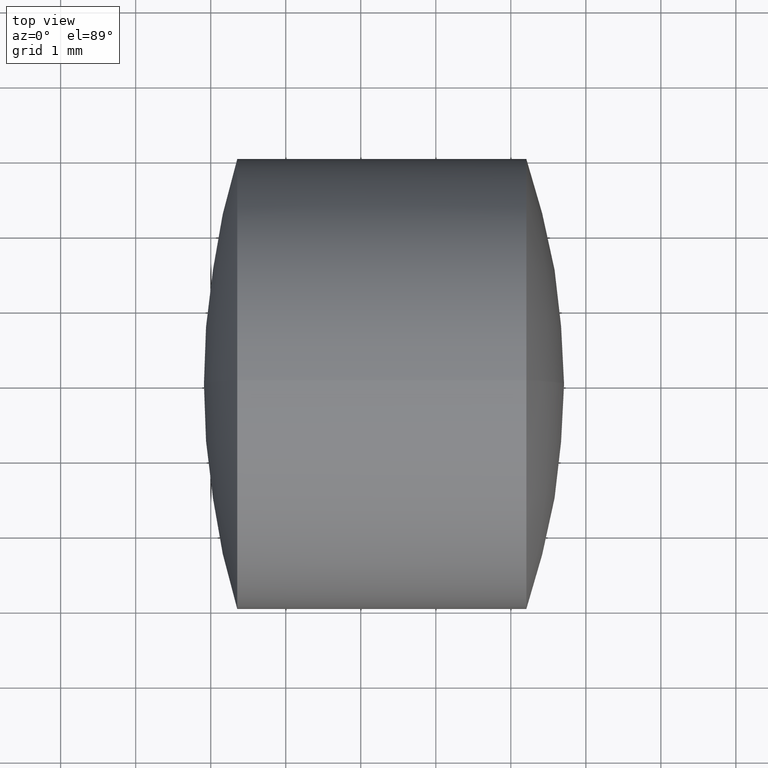
[diagram: clean part render]
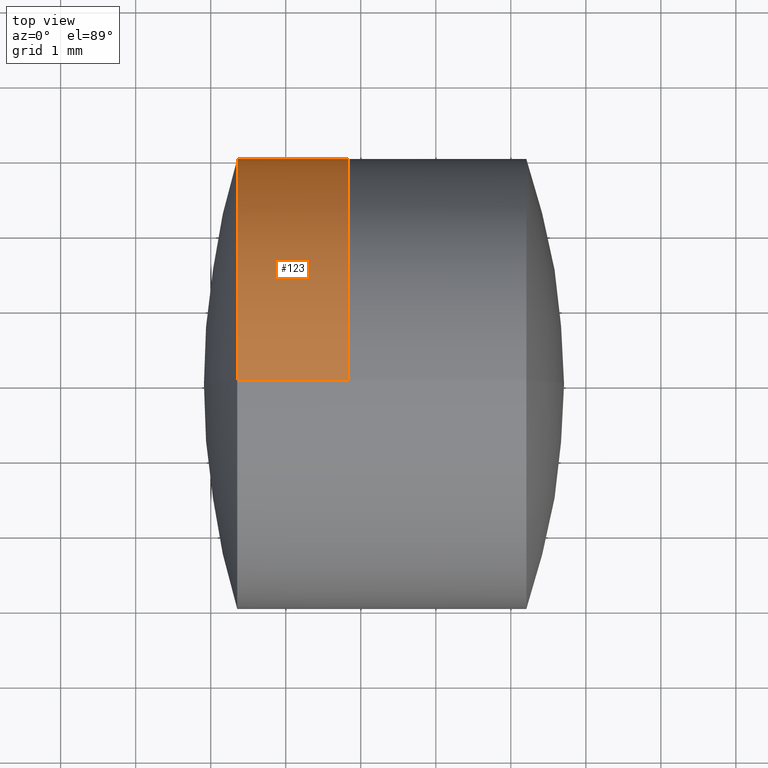
[diagram: same view with one face highlighted and labeled with its STEP entity id]
A machine part, top view. The second image highlights one B-rep face of the part: STEP entity #123.
In plain terms, the highlighted cylindrical surface (partial cylindrical patch) has radius 3 mm, axis along (-1, -0, -0).
Its self-contained STEP definition (entity closure, byte-faithful):
#4 = AXIS2_PLACEMENT_3D ( 'NONE', #187, #258, #317 ) ;
#10 = CARTESIAN_POINT ( 'NONE',  ( 1.831048013437507300, 0.0000000000000000000, 3.000000000000000000 ) ) ;
#12 = CIRCLE ( 'NONE', #4, 3.000000000000000000 ) ;
#14 = ORIENTED_EDGE ( 'NONE', *, *, #75, .F. ) ;
#23 = CARTESIAN_POINT ( 'NONE',  ( 1.831048013437507300, 0.0000000000000000000, 0.0000000000000000000 ) ) ;
#24 = CIRCLE ( 'NONE', #32, 3.000000000000000000 ) ;
#31 = EDGE_LOOP ( 'NONE', ( #68, #306, #52, #14 ) ) ;
#32 = AXIS2_PLACEMENT_3D ( 'NONE', #23, #50, #120 ) ;
#41 = DIRECTION ( 'NONE',  ( -1.000000000000000000, -0.0000000000000000000, -0.0000000000000000000 ) ) ;
#46 = AXIS2_PLACEMENT_3D ( 'NONE', #101, #41, #180 ) ;
#50 = DIRECTION ( 'NONE',  ( -1.000000000000000000, -0.0000000000000000000, -0.0000000000000000000 ) ) ;
#52 = ORIENTED_EDGE ( 'NONE', *, *, #212, .F. ) ;
#68 = ORIENTED_EDGE ( 'NONE', *, *, #149, .T. ) ;
#75 = EDGE_CURVE ( 'NONE', #213, #314, #87, .T. ) ;
#87 = LINE ( 'NONE', #322, #137 ) ;
#89 = CARTESIAN_POINT ( 'NONE',  ( -0.8160621761658039000, 3.673940397442059900E-016, -3.000000000000000000 ) ) ;
#100 = DIRECTION ( 'NONE',  ( -1.000000000000000000, -0.0000000000000000000, -0.0000000000000000000 ) ) ;
#101 = CARTESIAN_POINT ( 'NONE',  ( -0.8160621761658039000, 0.0000000000000000000, 0.0000000000000000000 ) ) ;
#102 = CARTESIAN_POINT ( 'NONE',  ( 0.3539120285020531100, -3.673940397442060400E-016, 3.000000000000000000 ) ) ;
#116 = EDGE_CURVE ( 'NONE', #326, #216, #117, .T. ) ;
#117 = LINE ( 'NONE', #89, #147 ) ;
#120 = DIRECTION ( 'NONE',  ( 0.0000000000000000000, 0.0000000000000000000, 1.000000000000000000 ) ) ;
#123 = ADVANCED_FACE ( 'NONE', ( #300 ), #299, .T. ) ;
#127 = DIRECTION ( 'NONE',  ( -1.000000000000000000, -0.0000000000000000000, -0.0000000000000000000 ) ) ;
#137 = VECTOR ( 'NONE', #127, 1000.000000000000000 ) ;
#147 = VECTOR ( 'NONE', #100, 1000.000000000000000 ) ;
#149 = EDGE_CURVE ( 'NONE', #213, #326, #24, .T. ) ;
#180 = DIRECTION ( 'NONE',  ( 0.0000000000000000000, 0.0000000000000000000, 1.000000000000000000 ) ) ;
#187 = CARTESIAN_POINT ( 'NONE',  ( 0.3539120285020534400, 0.0000000000000000000, 0.0000000000000000000 ) ) ;
#188 = CARTESIAN_POINT ( 'NONE',  ( 0.3539120285020531100, 0.0000000000000000000, -3.000000000000000000 ) ) ;
#212 = EDGE_CURVE ( 'NONE', #314, #216, #12, .T. ) ;
#213 = VERTEX_POINT ( 'NONE', #10 ) ;
#216 = VERTEX_POINT ( 'NONE', #188 ) ;
#258 = DIRECTION ( 'NONE',  ( -1.000000000000000000, -0.0000000000000000000, -0.0000000000000000000 ) ) ;
#285 = CARTESIAN_POINT ( 'NONE',  ( 1.831048013437507300, 3.673940397442059900E-016, -3.000000000000000000 ) ) ;
#299 = CYLINDRICAL_SURFACE ( 'NONE', #46, 3.000000000000000000 ) ;
#300 = FACE_OUTER_BOUND ( 'NONE', #31, .T. ) ;
#306 = ORIENTED_EDGE ( 'NONE', *, *, #116, .T. ) ;
#314 = VERTEX_POINT ( 'NONE', #102 ) ;
#317 = DIRECTION ( 'NONE',  ( 0.0000000000000000000, 0.0000000000000000000, 1.000000000000000000 ) ) ;
#322 = CARTESIAN_POINT ( 'NONE',  ( -0.8160621761658039000, 0.0000000000000000000, 3.000000000000000000 ) ) ;
#326 = VERTEX_POINT ( 'NONE', #285 ) ;